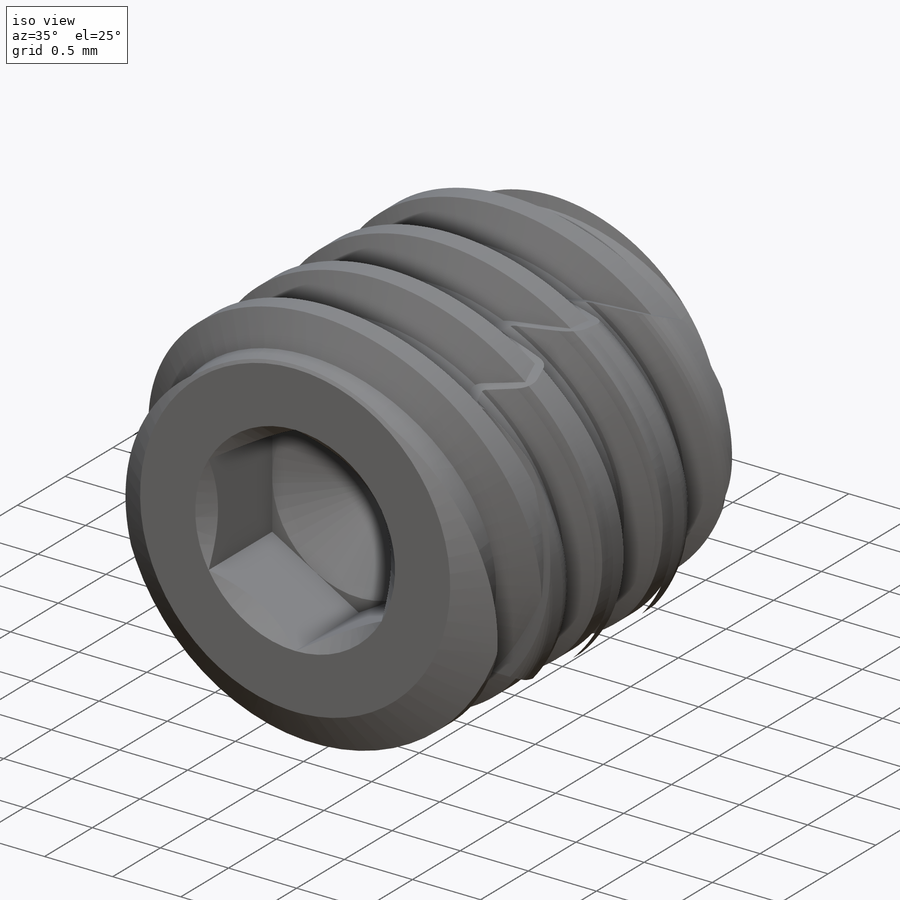
[diagram: iso view]
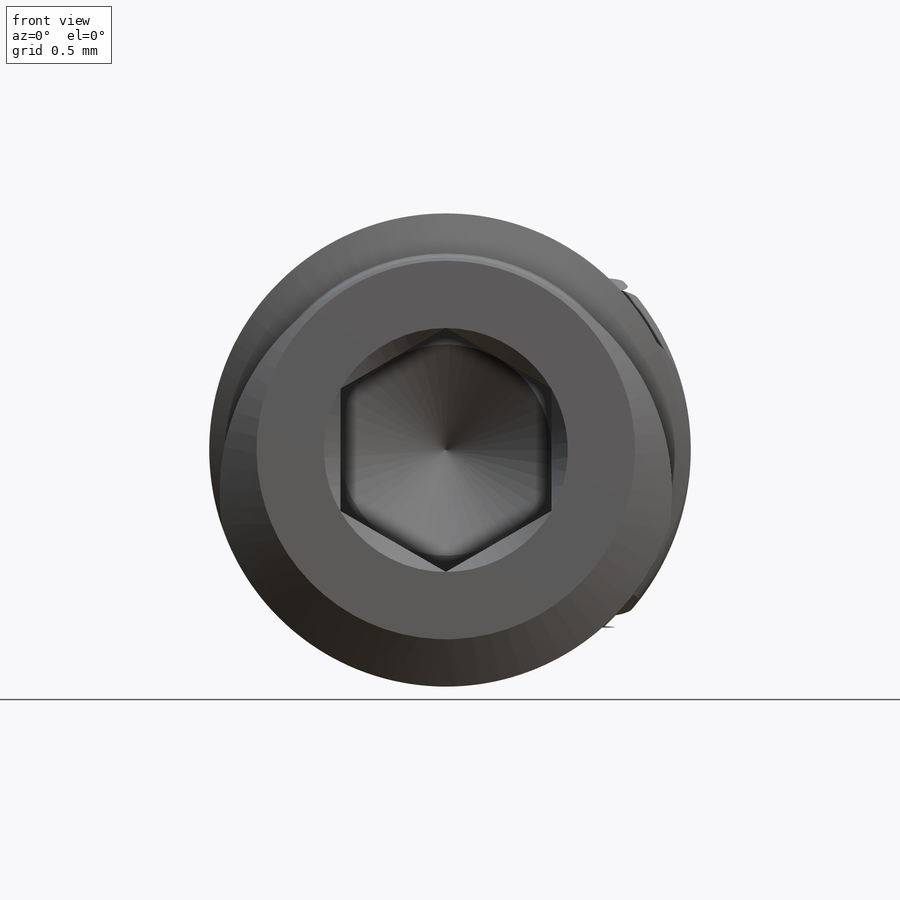
[diagram: front view]
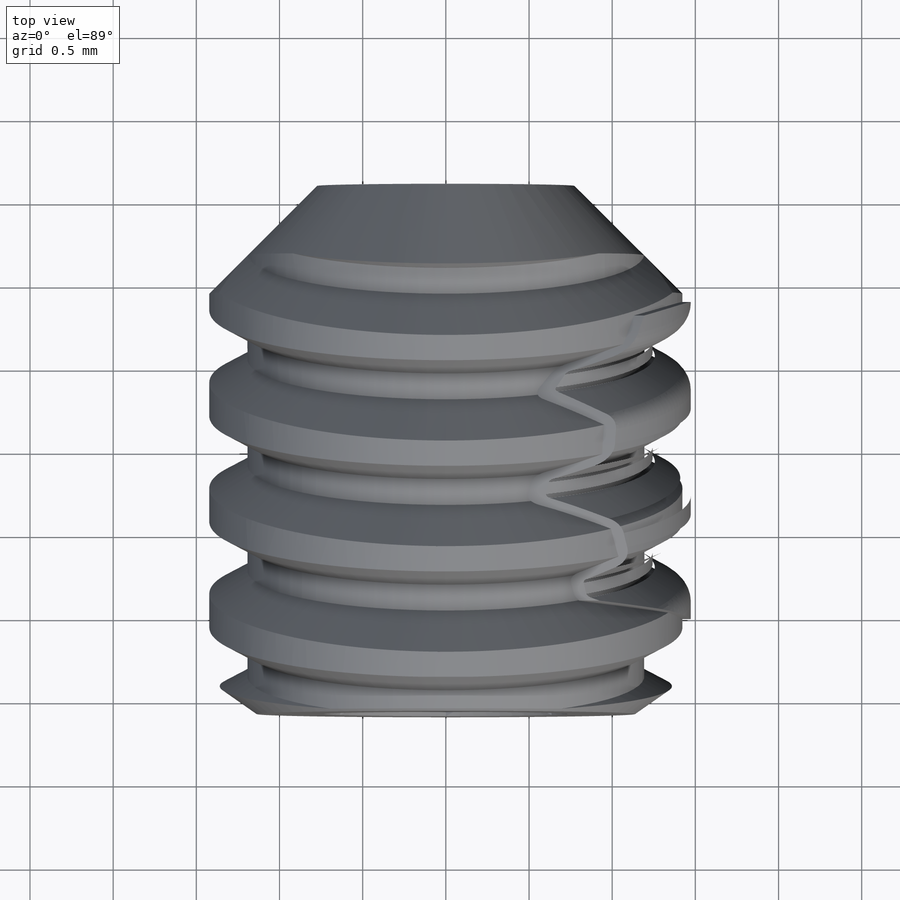
[diagram: top view]
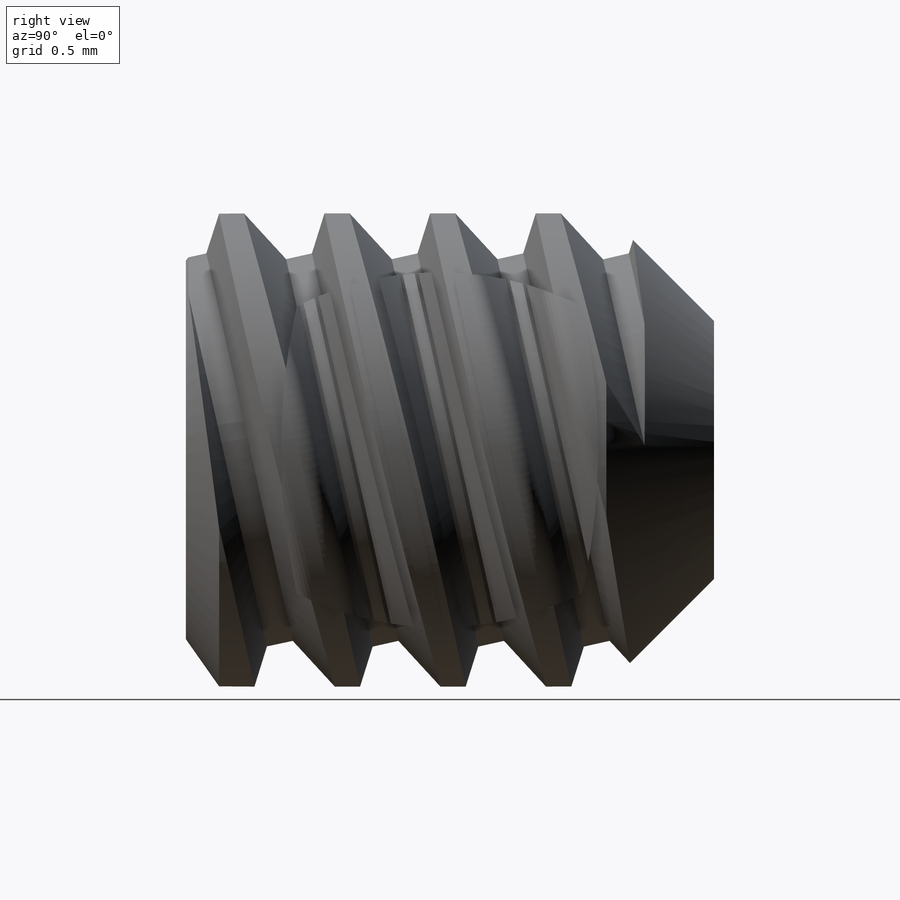
[diagram: right view]
SOLIDWORKS PART (.sldprt)
format: sldprt  version: not decoded by parser v0  size: 1,335,296 bytes
history: native  units: mm
features: sketch x7, cut_extrude x4, cut_revolve x2, material x1, revolve x1, pattern_linear x1, fillet x1 (+11 scaffold rows collapsed)
feature tree (28):
  scaffold x11  (default folders/planes/origin — collapsed)
  material  "Material <not specified>"
  sketch  "Sketch22"  dims[c1.Screw Dia=2.8448mm c1.Length=3.175mm c1.D3=~0.472649mm c2.D3=35.0deg c2.Cup Point Dia=1.5494mm c2.D5=~1.43605mm c3.D5=118.0deg c3.D6=1.4986mm c4.D6=45.0deg c4.D7=~2.27584mm]
  revolve  "Revolve1"  Angle=360deg
  sketch  "Sketch6"  dims[c1.D1=~1.551984mm c2.D1=60.0deg c2.D2=0.3125mm c2.D3=~0.15625mm c2.Pitch=~1.953846mm c2.D4=0.508mm c2.D5=0.508mm c3.Pitch=1.25mm c3.D1=10.0mm c4.D1=~8.390381deg c5.D1=1.25mm c5.D2=~1.231583mm c6.D2=90.0deg c7.D2=~1.573443mm c8.D2=60.0deg c8.D3=0.313mm c8.D4=~0.15625mm c8.Pitch=0.635mm c9.D2=~1.674161mm c10.D2=60.0deg c11.D2=~0.15875mm c11.D3=~1.501533mm c12.D3=60.0deg c12.D1=0.635mm c12.D4=~0.15625mm c12.D5=~0.988019mm c12.D6=~0.15625mm c13.D5=~0.158146mm c13.D6=~0.158146mm c14.D5=~0.158146mm c14.D6=~0.158146mm c14.D4=~0.15625mm c15.D5=~0.15625mm c15.D6=~0.975586mm c16.D5=~0.988019mm c16.D4=~0.079375mm]
  cut_revolve  "Cut-Revolve8"  Angle=360deg
  pattern_linear  "LPattern1"  Count1=4 Count2=2 Spacing1=0.635mm Spacing2=0.635mm
  sketch  "Sketch23"  dims[Hex=1.27mm]
  cut_extrude  "Cut-Extrude10"  Depth=0.66675mm hex Depth=0.66675mm
  sketch  "Sketch24"
  cut_extrude  "Cut-Extrude11"  [1 undecoded]
  sketch  "Sketch26"
  cut_extrude  "Cut-Extrude12"  Depth=0mm
  fillet  "Fillet1"  Radius=0.0762mm
  sketch  "Sketch27"  dims[D1=0.254mm]
  cut_revolve  "Cut-Revolve9"  Angle=180deg
  sketch  "Sketch21"  dims[c1.D2=~3.239292mm c1.D3=~2.610164mm c1.D1=3.18mm c2.D3=~1.528164mm c2.D4=~2.333048mm c3.D3=~1.935507mm c3.D1=~2.101878mm c3.D2=~0.71372mm c3.D4=1.905mm c3.D5=~56.456207mm c4.D1=1.59mm c4.D2=6.7mm c5.D1=~4.767691mm c5.D2=6.7mm c6.D1=~2.760589mm c6.D2=1.3805mm c6.D3=~1.814768mm c6.D4=4.955mm c7.D1=4.7625mm c7.D2=~1.536192mm c7.D3=6.4008mm c7.D4=~0.877824mm c8.D3=0.127mm c8.D1=3.175mm c8.D2=3.6195mm c9.D1=1.905mm c9.D2=2.1336mm c9.D3=0.0508mm c9.D5=1.7145mm c10.D2=~70.585525deg]
  cut_extrude  "Cut-Extrude13"  [1 undecoded]
decode coverage: 12 of 16 modeling features carry decoded parameters
note: ~ marks probable driven/reference dimensions
note: 2 parameter values undecoded
note: suppression state not decoded; provenance and decode notes live in map.json
